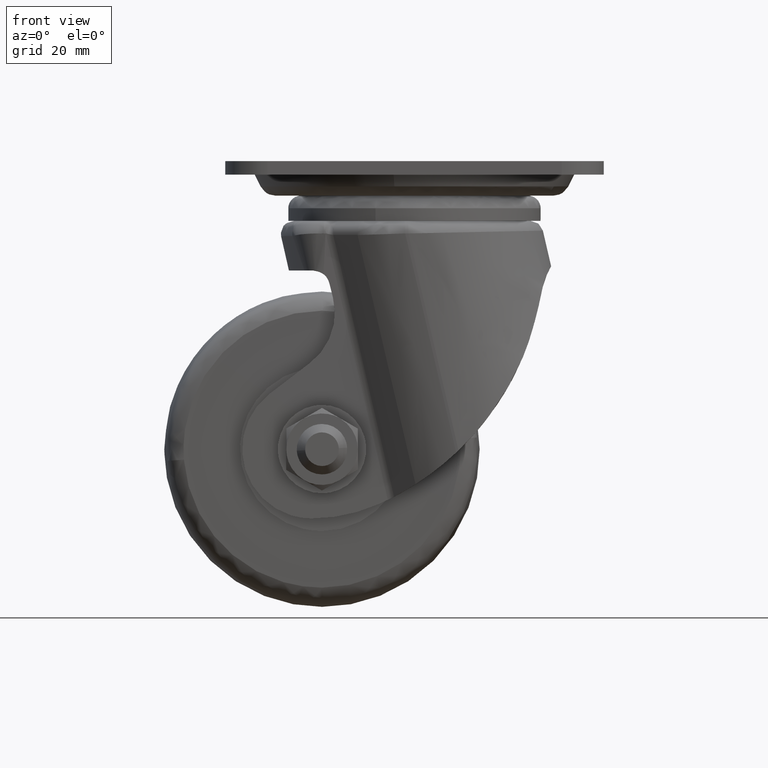
[diagram: clean part render]
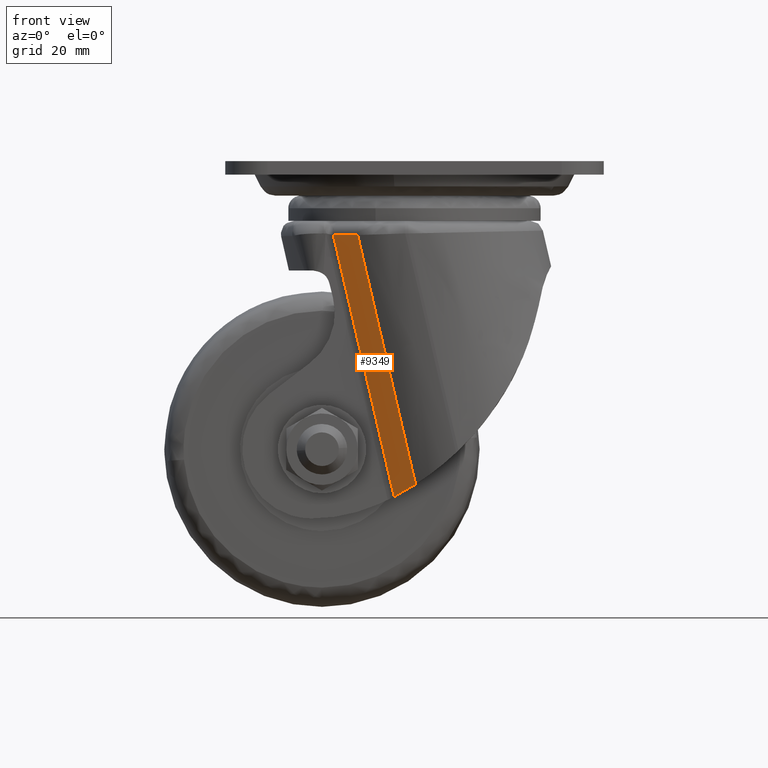
[diagram: same view with one face highlighted and labeled with its STEP entity id]
A machine part, front view. The second image highlights one B-rep face of the part: STEP entity #9349.
In plain terms, the highlighted face is a freeform B-spline surface patch.
Its self-contained STEP definition (entity closure, byte-faithful):
#7705=CARTESIAN_POINT('',(-19.295176177350651,-24.207213528266301,-17.577719511408201));
#7706=VERTEX_POINT('',#7705);
#7778=CARTESIAN_POINT('',(-13.528128874002260,-27.968576478224598,-17.577719511408201));
#7779=VERTEX_POINT('',#7778);
#7802=CARTESIAN_POINT('',(-13.528128874002260,-27.968576478224598,-17.577719511408201));
#7803=CARTESIAN_POINT('',(-19.295176177350651,-24.207213528266301,-17.577719511408201));
#7804=QUASI_UNIFORM_CURVE('',1,(#7802,#7803),.UNSPECIFIED.,.F.,.U.);
#7805=EDGE_CURVE('',#7779,#7706,#7804,.T.);
#8808=CARTESIAN_POINT('',(-4.840400867078740,-24.207213528266252,-79.796104490780991));
#8809=VERTEX_POINT('',#8808);
#8810=CARTESIAN_POINT('',(-19.295176177350651,-24.207213528266301,-17.577719511408201));
#8811=CARTESIAN_POINT('',(-4.840400867078740,-24.207213528266252,-79.796104490780991));
#8812=QUASI_UNIFORM_CURVE('',1,(#8810,#8811),.UNSPECIFIED.,.F.,.U.);
#8813=EDGE_CURVE('',#7706,#8809,#8812,.T.);
#8863=CARTESIAN_POINT('',(0.241298874577182,-27.968576478224598,-76.846129999807502));
#8864=VERTEX_POINT('',#8863);
#8865=CARTESIAN_POINT('',(0.241298874577182,-27.968576478224598,-76.846129999807502));
#8866=CARTESIAN_POINT('',(-13.528128874002260,-27.968576478224598,-17.577719511408201));
#8867=QUASI_UNIFORM_CURVE('',1,(#8865,#8866),.UNSPECIFIED.,.F.,.U.);
#8868=EDGE_CURVE('',#8864,#7779,#8867,.T.);
#9326=CARTESIAN_POINT('',(-15.536466501329651,-16.760153194815391,-82.903912699909384));
#9327=CARTESIAN_POINT('',(1.431894797814276,-27.827197065783750,-82.903912699909384));
#9328=CARTESIAN_POINT('',(-20.281239568716028,-24.034997735827830,-14.469909633452700));
#9329=CARTESIAN_POINT('',(-3.312878269572103,-35.102041606796192,-14.469909633452700));
#9330=B_SPLINE_SURFACE_WITH_KNOTS('',1,1,((#9326,#9328),(#9327,#9329)),.UNSPECIFIED.,.F.,.F.,.U.,(2,2),(2,2),(0.0,20.258448736767178),(0.0,68.982961738799645),.UNSPECIFIED.);
#9331=ORIENTED_EDGE('',*,*,#8868,.T.);
#9332=ORIENTED_EDGE('',*,*,#7805,.T.);
#9333=ORIENTED_EDGE('',*,*,#8813,.T.);
#9334=CARTESIAN_POINT('',(-4.840400867078789,-24.207213528266230,-79.796104490781005));
#9335=CARTESIAN_POINT('',(-2.234860011703532,-26.113201834502252,-78.432555551105892));
#9336=CARTESIAN_POINT('',(0.241298874577182,-27.968576478224570,-76.846129999807502));
#9344=(BOUNDED_CURVE()B_SPLINE_CURVE(2,(#9334,#9335,#9336),.UNSPECIFIED.,.F.,.U.)CURVE()GEOMETRIC_REPRESENTATION_ITEM()QUASI_UNIFORM_CURVE()RATIONAL_B_SPLINE_CURVE((1.0,0.999039593707771,1.0))REPRESENTATION_ITEM(''));
#9345=EDGE_CURVE('',#8809,#8864,#9344,.T.);
#9346=ORIENTED_EDGE('',*,*,#9345,.T.);
#9347=EDGE_LOOP('',(#9331,#9332,#9333,#9346));
#9348=FACE_OUTER_BOUND('',#9347,.T.);
#9349=ADVANCED_FACE('',(#9348),#9330,.T.);